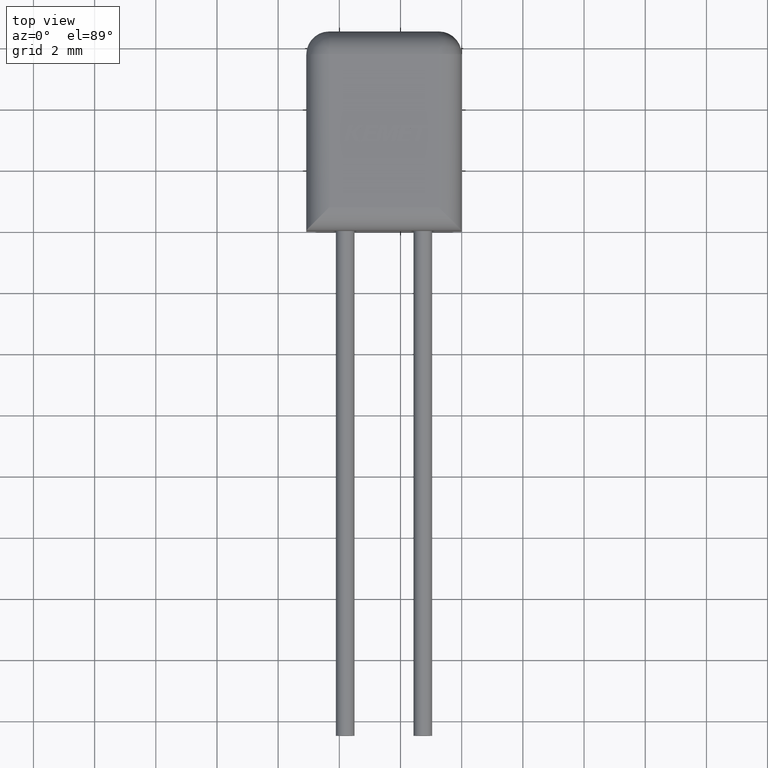
[diagram: clean part render]
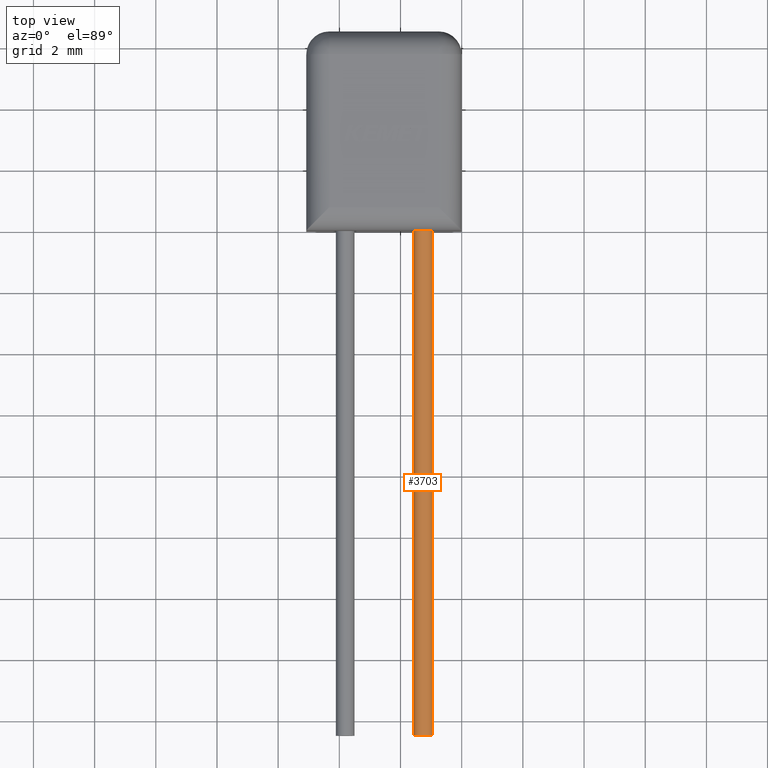
[diagram: same view with one face highlighted and labeled with its STEP entity id]
A machine part, top view. The second image highlights one B-rep face of the part: STEP entity #3703.
In plain terms, the highlighted cylindrical surface (edge-blend (fillet) strip) has radius 0.305 mm, axis along (0, 1, -0).
Its self-contained STEP definition (entity closure, byte-faithful):
#165 = CARTESIAN_POINT ( 'NONE',  ( -1.270000000000001100, -4.665904304751415500E-016, 2.035000000000000100 ) ) ;
#241 = DIRECTION ( 'NONE',  ( 1.224646799147353200E-016, 1.000000000000000000, -0.0000000000000000000 ) ) ;
#300 = VECTOR ( 'NONE', #2860, 1000.000000000000000 ) ;
#489 = VERTEX_POINT ( 'NONE', #2770 ) ;
#778 = CYLINDRICAL_SURFACE ( 'NONE', #1689, 0.3050000000000001600 ) ;
#876 = VERTEX_POINT ( 'NONE', #2505 ) ;
#881 = EDGE_CURVE ( 'NONE', #489, #876, #3460, .T. ) ;
#989 = VERTEX_POINT ( 'NONE', #1671 ) ;
#1016 = CARTESIAN_POINT ( 'NONE',  ( -1.270000000000003100, -16.50000000000000000, 2.035000000000000100 ) ) ;
#1072 = VECTOR ( 'NONE', #1431, 1000.000000000000000 ) ;
#1260 = CIRCLE ( 'NONE', #3303, 0.3050000000000001600 ) ;
#1365 = DIRECTION ( 'NONE',  ( -1.000000000000000000, 0.0000000000000000000, 0.0000000000000000000 ) ) ;
#1404 = DIRECTION ( 'NONE',  ( -1.000000000000000000, 0.0000000000000000000, 0.0000000000000000000 ) ) ;
#1408 = CARTESIAN_POINT ( 'NONE',  ( -1.575000000000003300, -16.50000000000000000, 2.035000000000000100 ) ) ;
#1431 = DIRECTION ( 'NONE',  ( 1.224646799147353200E-016, 1.000000000000000000, -0.0000000000000000000 ) ) ;
#1471 = EDGE_CURVE ( 'NONE', #989, #876, #3323, .T. ) ;
#1648 = ORIENTED_EDGE ( 'NONE', *, *, #2921, .T. ) ;
#1671 = CARTESIAN_POINT ( 'NONE',  ( -0.9650000000000029700, -16.50000000000000000, 2.035000000000000100 ) ) ;
#1682 = CARTESIAN_POINT ( 'NONE',  ( -1.270000000000003100, -16.50000000000000000, 2.035000000000000100 ) ) ;
#1689 = AXIS2_PLACEMENT_3D ( 'NONE', #1682, #241, #1404 ) ;
#1937 = DIRECTION ( 'NONE',  ( 1.224646799147353200E-016, 1.000000000000000000, -0.0000000000000000000 ) ) ;
#2376 = EDGE_LOOP ( 'NONE', ( #1648, #2991, #2429, #2637 ) ) ;
#2408 = VERTEX_POINT ( 'NONE', #3179 ) ;
#2429 = ORIENTED_EDGE ( 'NONE', *, *, #881, .F. ) ;
#2441 = LINE ( 'NONE', #1408, #300 ) ;
#2473 = AXIS2_PLACEMENT_3D ( 'NONE', #165, #3066, #3604 ) ;
#2505 = CARTESIAN_POINT ( 'NONE',  ( -0.9650000000000009700, -5.039421578491359000E-016, 2.035000000000000100 ) ) ;
#2605 = FACE_OUTER_BOUND ( 'NONE', #2376, .T. ) ;
#2637 = ORIENTED_EDGE ( 'NONE', *, *, #3112, .F. ) ;
#2770 = CARTESIAN_POINT ( 'NONE',  ( -1.575000000000001300, -4.292387031011472500E-016, 2.035000000000000100 ) ) ;
#2860 = DIRECTION ( 'NONE',  ( 1.224646799147353200E-016, 1.000000000000000000, -0.0000000000000000000 ) ) ;
#2921 = EDGE_CURVE ( 'NONE', #2408, #989, #1260, .T. ) ;
#2991 = ORIENTED_EDGE ( 'NONE', *, *, #1471, .T. ) ;
#3066 = DIRECTION ( 'NONE',  ( 1.224646799147353200E-016, 1.000000000000000000, -0.0000000000000000000 ) ) ;
#3112 = EDGE_CURVE ( 'NONE', #2408, #489, #2441, .T. ) ;
#3179 = CARTESIAN_POINT ( 'NONE',  ( -1.575000000000003300, -16.50000000000000000, 2.035000000000000100 ) ) ;
#3303 = AXIS2_PLACEMENT_3D ( 'NONE', #1016, #1937, #1365 ) ;
#3323 = LINE ( 'NONE', #3391, #1072 ) ;
#3391 = CARTESIAN_POINT ( 'NONE',  ( -0.9650000000000029700, -16.50000000000000000, 2.035000000000000100 ) ) ;
#3460 = CIRCLE ( 'NONE', #2473, 0.3050000000000001600 ) ;
#3604 = DIRECTION ( 'NONE',  ( -1.000000000000000000, 1.224646799147353900E-016, 0.0000000000000000000 ) ) ;
#3703 = ADVANCED_FACE ( 'NONE', ( #2605 ), #778, .T. ) ;